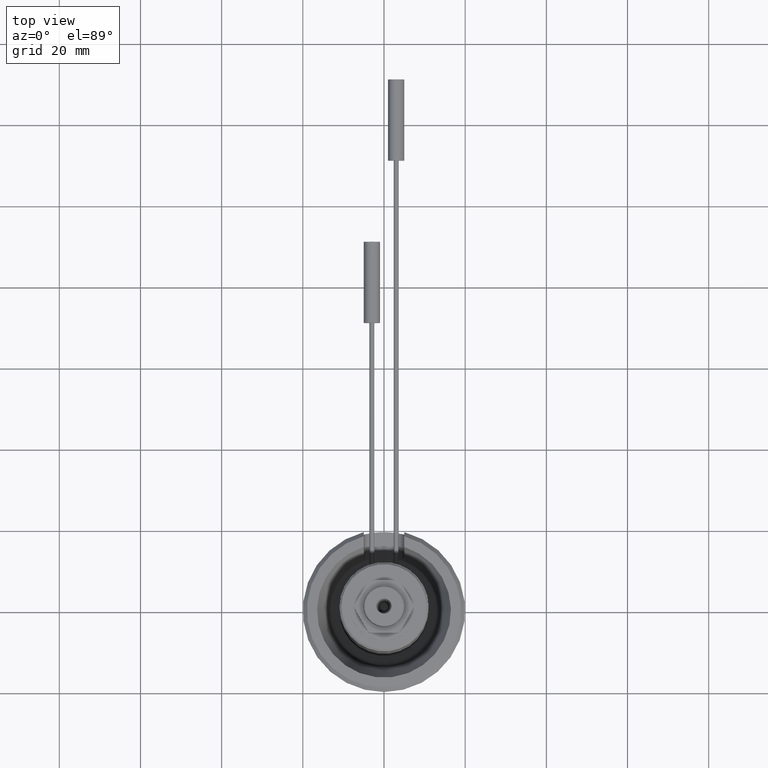
[diagram: clean part render]
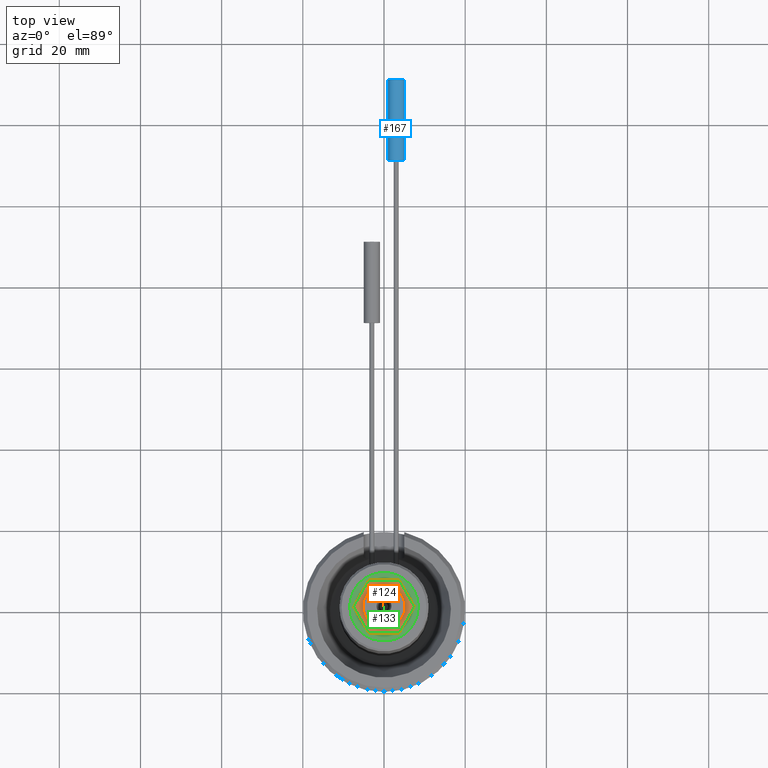
[diagram: same view with three faces highlighted in distinct colors, each labeled with its STEP entity id]
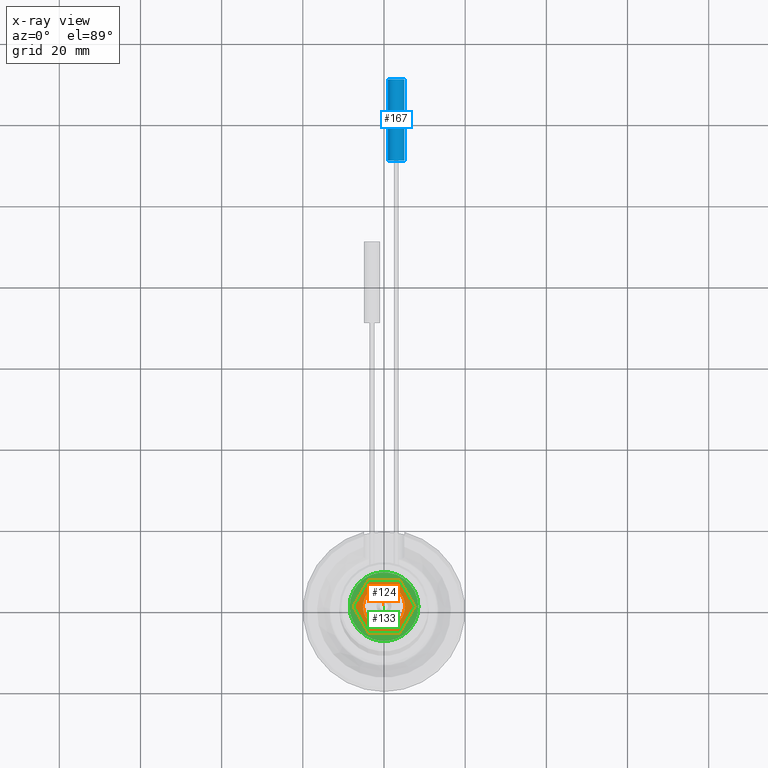
[diagram: x-ray of the same camera — body ghosted, the three highlighted faces saturated]
A machine part, top view with three faces highlighted in distinct colors.
The next image is the same camera in x-ray (body ghosted, the three faces saturated) — at least one of them is partly hidden behind the body in this view.
Their STEP definitions:

[orange] entity #124 — the highlighted planar face has unit normal (0, 0, -1).
#124=ADVANCED_FACE('',(#304,#305),#187,.F.);
#187=PLANE('',#960);
#216=LINE('',#1356,#260);
#217=LINE('',#1360,#261);
#218=LINE('',#1364,#262);
#219=LINE('',#1368,#263);
#220=LINE('',#1372,#264);
#221=LINE('',#1376,#265);
#260=VECTOR('',#1076,1.);
#261=VECTOR('',#1079,1.);
#262=VECTOR('',#1082,1.);
#263=VECTOR('',#1085,1.);
#264=VECTOR('',#1088,1.);
#265=VECTOR('',#1091,1.);
#304=FACE_BOUND('',#362,.T.);
#305=FACE_BOUND('',#363,.T.);
#362=EDGE_LOOP('',(#456));
#363=EDGE_LOOP('',(#457,#458,#459,#460,#461,#462,#463,#464,#465,#466,#467,
#468));
#456=ORIENTED_EDGE('',*,*,#780,.T.);
#457=ORIENTED_EDGE('',*,*,#781,.T.);
#458=ORIENTED_EDGE('',*,*,#782,.T.);
#459=ORIENTED_EDGE('',*,*,#783,.T.);
#460=ORIENTED_EDGE('',*,*,#784,.T.);
#461=ORIENTED_EDGE('',*,*,#785,.T.);
#462=ORIENTED_EDGE('',*,*,#786,.F.);
#463=ORIENTED_EDGE('',*,*,#787,.T.);
#464=ORIENTED_EDGE('',*,*,#788,.F.);
#465=ORIENTED_EDGE('',*,*,#789,.T.);
#466=ORIENTED_EDGE('',*,*,#790,.F.);
#467=ORIENTED_EDGE('',*,*,#791,.T.);
#468=ORIENTED_EDGE('',*,*,#792,.F.);
#692=VERTEX_POINT('',#1352);
#693=VERTEX_POINT('',#1354);
#694=VERTEX_POINT('',#1355);
#695=VERTEX_POINT('',#1357);
#696=VERTEX_POINT('',#1359);
#697=VERTEX_POINT('',#1361);
#698=VERTEX_POINT('',#1363);
#699=VERTEX_POINT('',#1365);
#700=VERTEX_POINT('',#1367);
#701=VERTEX_POINT('',#1369);
#702=VERTEX_POINT('',#1371);
#703=VERTEX_POINT('',#1373);
#704=VERTEX_POINT('',#1375);
#780=EDGE_CURVE('',#692,#692,#898,.T.);
#781=EDGE_CURVE('',#693,#694,#899,.T.);
#782=EDGE_CURVE('',#694,#695,#216,.T.);
#783=EDGE_CURVE('',#695,#696,#900,.T.);
#784=EDGE_CURVE('',#696,#697,#217,.T.);
#785=EDGE_CURVE('',#697,#698,#901,.T.);
#786=EDGE_CURVE('',#699,#698,#218,.T.);
#787=EDGE_CURVE('',#699,#700,#902,.T.);
#788=EDGE_CURVE('',#701,#700,#219,.T.);
#789=EDGE_CURVE('',#701,#702,#903,.T.);
#790=EDGE_CURVE('',#703,#702,#220,.T.);
#791=EDGE_CURVE('',#703,#704,#904,.T.);
#792=EDGE_CURVE('',#693,#704,#221,.T.);
#898=CIRCLE('',#953,5.2);
#899=CIRCLE('',#954,7.45);
#900=CIRCLE('',#955,7.45);
#901=CIRCLE('',#956,7.45);
#902=CIRCLE('',#957,7.45);
#903=CIRCLE('',#958,7.45);
#904=CIRCLE('',#959,7.45);
#953=AXIS2_PLACEMENT_3D('',#1351,#1072,#1073);
#954=AXIS2_PLACEMENT_3D('',#1353,#1074,#1075);
#955=AXIS2_PLACEMENT_3D('',#1358,#1077,#1078);
#956=AXIS2_PLACEMENT_3D('',#1362,#1080,#1081);
#957=AXIS2_PLACEMENT_3D('',#1366,#1083,#1084);
#958=AXIS2_PLACEMENT_3D('',#1370,#1086,#1087);
#959=AXIS2_PLACEMENT_3D('',#1374,#1089,#1090);
#960=AXIS2_PLACEMENT_3D('',#1377,#1092,#1093);
#1072=DIRECTION('',(0.,0.,-1.));
#1073=DIRECTION('',(-1.,0.,0.));
#1074=DIRECTION('',(0.,0.,1.));
#1075=DIRECTION('',(1.,0.,0.));
#1076=DIRECTION('',(-0.499999999999996,-0.866025403784441,0.));
#1077=DIRECTION('',(0.,0.,1.));
#1078=DIRECTION('',(1.,0.,0.));
#1079=DIRECTION('',(0.500000000000003,-0.866025403784437,0.));
#1080=DIRECTION('',(0.,0.,1.));
#1081=DIRECTION('',(1.,0.,0.));
#1082=DIRECTION('',(-1.,-2.73999136442525E-15,0.));
#1083=DIRECTION('',(0.,0.,1.));
#1084=DIRECTION('',(1.,0.,0.));
#1085=DIRECTION('',(-0.499999999999994,-0.866025403784442,0.));
#1086=DIRECTION('',(0.,0.,1.));
#1087=DIRECTION('',(1.,0.,0.));
#1088=DIRECTION('',(0.500000000000005,-0.866025403784436,0.));
#1089=DIRECTION('',(0.,0.,1.));
#1090=DIRECTION('',(1.,0.,0.));
#1091=DIRECTION('',(1.,5.12259255088199E-15,0.));
#1092=DIRECTION('',(0.,0.,-1.));
#1093=DIRECTION('',(-1.,0.,0.));
#1351=CARTESIAN_POINT('',(0.,0.,83.3));
#1352=CARTESIAN_POINT('',(-5.2,0.,83.3));
#1353=CARTESIAN_POINT('',(0.,0.,83.3));
#1354=CARTESIAN_POINT('',(-3.64039832985349,6.49999999999997,83.3));
#1355=CARTESIAN_POINT('',(-3.80896595967212,6.40267743354755,83.3));
#1356=CARTESIAN_POINT('',(-3.80896595967212,6.40267743354755,83.3));
#1357=CARTESIAN_POINT('',(-7.44936428952559,0.0973225664524279,83.3));
#1358=CARTESIAN_POINT('',(0.,0.,83.3));
#1359=CARTESIAN_POINT('',(-7.44936428952559,-0.0973225664524481,83.3));
#1360=CARTESIAN_POINT('',(-7.44936428952559,-0.0973225664524513,83.3));
#1361=CARTESIAN_POINT('',(-3.8089659596721,-6.40267743354756,83.3));
#1362=CARTESIAN_POINT('',(0.,0.,83.3));
#1363=CARTESIAN_POINT('',(-3.64039832985348,-6.5,83.3));
#1364=CARTESIAN_POINT('',(3.64039832985348,-6.49999999999998,83.3));
#1365=CARTESIAN_POINT('',(3.64039832985349,-6.5,83.3));
#1366=CARTESIAN_POINT('',(0.,0.,83.3));
#1367=CARTESIAN_POINT('',(3.80896595967214,-6.40267743354754,83.3));
#1368=CARTESIAN_POINT('',(7.44936428952557,-0.0973225664524033,83.3));
#1369=CARTESIAN_POINT('',(7.44936428952557,-0.0973225664524033,83.3));
#1370=CARTESIAN_POINT('',(0.,0.,83.3));
#1371=CARTESIAN_POINT('',(7.44936428952559,0.0973225664524678,83.3));
#1372=CARTESIAN_POINT('',(3.80896595967208,6.40267743354756,83.3));
#1373=CARTESIAN_POINT('',(3.80896595967208,6.40267743354756,83.3));
#1374=CARTESIAN_POINT('',(0.,0.,83.3));
#1375=CARTESIAN_POINT('',(3.64039832985346,6.50000000000001,83.3));
#1376=CARTESIAN_POINT('',(-3.64039832985349,6.49999999999997,83.3));
#1377=CARTESIAN_POINT('',(-7.45,0.,83.3));

[blue] entity #167 — the highlighted cylindrical surface (bore or boss wall) has radius 2 mm, axis along (0, -1, 0).
#85=CYLINDRICAL_SURFACE('',#1050,2.);
#167=ADVANCED_FACE('',(#350,#351),#85,.T.);
#350=FACE_BOUND('',#430,.T.);
#351=FACE_BOUND('',#431,.T.);
#430=EDGE_LOOP('',(#625));
#431=EDGE_LOOP('',(#626));
#625=ORIENTED_EDGE('',*,*,#896,.F.);
#626=ORIENTED_EDGE('',*,*,#897,.T.);
#778=VERTEX_POINT('',#1819);
#779=VERTEX_POINT('',#1821);
#896=EDGE_CURVE('',#778,#778,#950,.T.);
#897=EDGE_CURVE('',#779,#779,#951,.T.);
#950=CIRCLE('',#1048,2.);
#951=CIRCLE('',#1049,2.);
#1048=AXIS2_PLACEMENT_3D('',#1818,#1306,#1307);
#1049=AXIS2_PLACEMENT_3D('',#1820,#1308,#1309);
#1050=AXIS2_PLACEMENT_3D('',#1822,#1310,#1311);
#1306=DIRECTION('',(0.,1.,0.));
#1307=DIRECTION('',(1.,0.,0.));
#1308=DIRECTION('',(0.,1.,0.));
#1309=DIRECTION('',(1.,0.,0.));
#1310=DIRECTION('',(0.,-1.,0.));
#1311=DIRECTION('',(0.,0.,-1.));
#1818=CARTESIAN_POINT('',(3.,131.,18.5));
#1819=CARTESIAN_POINT('',(5.,131.,18.5));
#1820=CARTESIAN_POINT('',(3.,111.,18.5));
#1821=CARTESIAN_POINT('',(5.,111.,18.5));
#1822=CARTESIAN_POINT('',(3.,131.,18.5));

[green] entity #133 — the highlighted planar face has unit normal (0, 0, -1).
#133=ADVANCED_FACE('',(#314,#315),#189,.F.);
#189=PLANE('',#980);
#232=LINE('',#1539,#276);
#233=LINE('',#1543,#277);
#234=LINE('',#1544,#278);
#235=LINE('',#1545,#279);
#236=LINE('',#1546,#280);
#237=LINE('',#1547,#281);
#276=VECTOR('',#1140,1.);
#277=VECTOR('',#1143,1.);
#278=VECTOR('',#1144,1.);
#279=VECTOR('',#1145,1.);
#280=VECTOR('',#1146,1.);
#281=VECTOR('',#1147,1.);
#314=FACE_BOUND('',#377,.T.);
#315=FACE_BOUND('',#378,.T.);
#377=EDGE_LOOP('',(#497,#498,#499,#500,#501,#502,#503,#504,#505,#506,#507,
#508));
#378=EDGE_LOOP('',(#509));
#497=ORIENTED_EDGE('',*,*,#802,.F.);
#498=ORIENTED_EDGE('',*,*,#815,.T.);
#499=ORIENTED_EDGE('',*,*,#816,.F.);
#500=ORIENTED_EDGE('',*,*,#817,.F.);
#501=ORIENTED_EDGE('',*,*,#797,.F.);
#502=ORIENTED_EDGE('',*,*,#818,.F.);
#503=ORIENTED_EDGE('',*,*,#793,.F.);
#504=ORIENTED_EDGE('',*,*,#819,.T.);
#505=ORIENTED_EDGE('',*,*,#799,.F.);
#506=ORIENTED_EDGE('',*,*,#820,.T.);
#507=ORIENTED_EDGE('',*,*,#806,.F.);
#508=ORIENTED_EDGE('',*,*,#821,.T.);
#509=ORIENTED_EDGE('',*,*,#814,.T.);
#705=VERTEX_POINT('',#1379);
#706=VERTEX_POINT('',#1380);
#707=VERTEX_POINT('',#1385);
#708=VERTEX_POINT('',#1387);
#709=VERTEX_POINT('',#1391);
#710=VERTEX_POINT('',#1392);
#711=VERTEX_POINT('',#1397);
#712=VERTEX_POINT('',#1398);
#713=VERTEX_POINT('',#1403);
#714=VERTEX_POINT('',#1405);
#721=VERTEX_POINT('',#1537);
#722=VERTEX_POINT('',#1540);
#723=VERTEX_POINT('',#1542);
#793=EDGE_CURVE('',#705,#706,#905,.T.);
#797=EDGE_CURVE('',#707,#708,#906,.T.);
#799=EDGE_CURVE('',#709,#710,#907,.T.);
#802=EDGE_CURVE('',#711,#712,#908,.T.);
#806=EDGE_CURVE('',#713,#714,#909,.T.);
#814=EDGE_CURVE('',#721,#721,#914,.T.);
#815=EDGE_CURVE('',#711,#722,#232,.T.);
#816=EDGE_CURVE('',#723,#722,#915,.T.);
#817=EDGE_CURVE('',#708,#723,#233,.T.);
#818=EDGE_CURVE('',#706,#707,#234,.T.);
#819=EDGE_CURVE('',#705,#710,#235,.T.);
#820=EDGE_CURVE('',#709,#714,#236,.T.);
#821=EDGE_CURVE('',#713,#712,#237,.T.);
#905=CIRCLE('',#961,7.45);
#906=CIRCLE('',#963,7.45);
#907=CIRCLE('',#965,7.45);
#908=CIRCLE('',#967,7.45);
#909=CIRCLE('',#969,7.45);
#914=CIRCLE('',#977,8.45);
#915=CIRCLE('',#979,7.45);
#961=AXIS2_PLACEMENT_3D('',#1378,#1094,#1095);
#963=AXIS2_PLACEMENT_3D('',#1386,#1101,#1102);
#965=AXIS2_PLACEMENT_3D('',#1390,#1106,#1107);
#967=AXIS2_PLACEMENT_3D('',#1396,#1112,#1113);
#969=AXIS2_PLACEMENT_3D('',#1404,#1119,#1120);
#977=AXIS2_PLACEMENT_3D('',#1536,#1136,#1137);
#979=AXIS2_PLACEMENT_3D('',#1541,#1141,#1142);
#980=AXIS2_PLACEMENT_3D('',#1548,#1148,#1149);
#1094=DIRECTION('',(0.,0.,1.));
#1095=DIRECTION('',(1.,0.,0.));
#1101=DIRECTION('',(0.,0.,1.));
#1102=DIRECTION('',(1.,0.,0.));
#1106=DIRECTION('',(0.,0.,1.));
#1107=DIRECTION('',(1.,0.,0.));
#1112=DIRECTION('',(0.,0.,1.));
#1113=DIRECTION('',(1.,0.,0.));
#1119=DIRECTION('',(0.,0.,1.));
#1120=DIRECTION('',(1.,0.,0.));
#1136=DIRECTION('',(0.,0.,1.));
#1137=DIRECTION('',(1.,0.,0.));
#1140=DIRECTION('',(-1.,-2.73999136442525E-15,0.));
#1141=DIRECTION('',(0.,0.,1.));
#1142=DIRECTION('',(1.,0.,0.));
#1143=DIRECTION('',(0.500000000000003,-0.866025403784437,0.));
#1144=DIRECTION('',(-0.499999999999996,-0.866025403784441,0.));
#1145=DIRECTION('',(1.,5.12259255088199E-15,0.));
#1146=DIRECTION('',(0.500000000000005,-0.866025403784436,0.));
#1147=DIRECTION('',(-0.499999999999994,-0.866025403784442,0.));
#1148=DIRECTION('',(0.,0.,-1.));
#1149=DIRECTION('',(-1.,0.,0.));
#1378=CARTESIAN_POINT('',(0.,0.,80.5000000000001));
#1379=CARTESIAN_POINT('',(-3.6403983298535,6.49999999999999,80.5000000000001));
#1380=CARTESIAN_POINT('',(-3.80896595967212,6.40267743354755,80.5));
#1385=CARTESIAN_POINT('',(-7.44936428952559,0.0973225664524279,80.5000000000001));
#1386=CARTESIAN_POINT('',(0.,0.,80.5000000000001));
#1387=CARTESIAN_POINT('',(-7.44936428952559,-0.0973225664524481,80.5));
#1390=CARTESIAN_POINT('',(0.,0.,80.5000000000001));
#1391=CARTESIAN_POINT('',(3.80896595967208,6.40267743354757,80.5000000000001));
#1392=CARTESIAN_POINT('',(3.64039832985346,6.50000000000001,80.5));
#1396=CARTESIAN_POINT('',(0.,0.,80.5000000000001));
#1397=CARTESIAN_POINT('',(3.64039832985348,-6.49999999999998,80.5));
#1398=CARTESIAN_POINT('',(3.80896595967214,-6.40267743354754,80.5));
#1403=CARTESIAN_POINT('',(7.44936428952559,-0.0973225664524036,80.5000000000001));
#1404=CARTESIAN_POINT('',(0.,0.,80.5000000000001));
#1405=CARTESIAN_POINT('',(7.44936428952559,0.0973225664524678,80.5));
#1536=CARTESIAN_POINT('',(0.,0.,80.5000000000001));
#1537=CARTESIAN_POINT('',(8.45,0.,80.5000000000001));
#1539=CARTESIAN_POINT('',(3.64039832985348,-6.49999999999998,80.5));
#1540=CARTESIAN_POINT('',(-3.64039832985348,-6.5,80.5));
#1541=CARTESIAN_POINT('',(0.,0.,80.5000000000001));
#1542=CARTESIAN_POINT('',(-3.8089659596721,-6.40267743354756,80.5000000000001));
#1543=CARTESIAN_POINT('',(-7.44936428952559,-0.0973225664524513,80.5));
#1544=CARTESIAN_POINT('',(-3.80896595967212,6.40267743354755,80.5));
#1545=CARTESIAN_POINT('',(-3.64039832985349,6.49999999999997,80.5));
#1546=CARTESIAN_POINT('',(3.80896595967208,6.40267743354756,80.5));
#1547=CARTESIAN_POINT('',(7.44936428952557,-0.0973225664524033,80.5));
#1548=CARTESIAN_POINT('',(-8.45,0.,80.5000000000001));